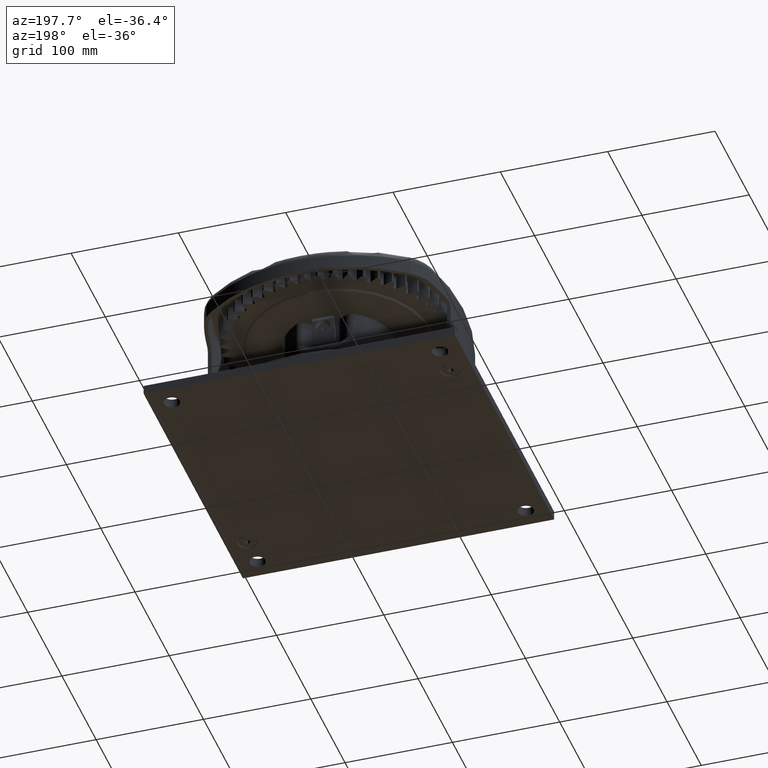
[diagram: clean part render]
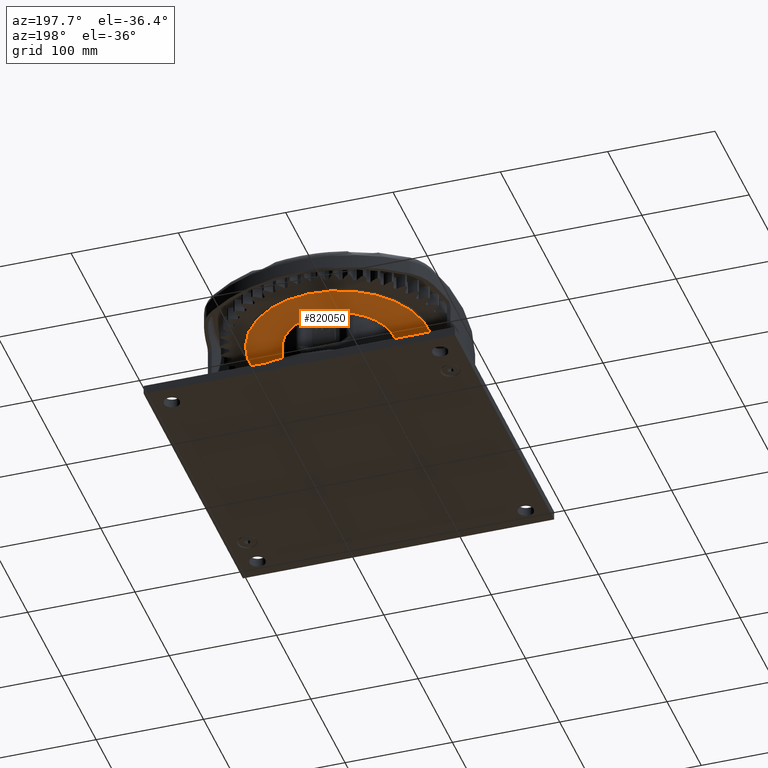
[diagram: same view with one face highlighted and labeled with its STEP entity id]
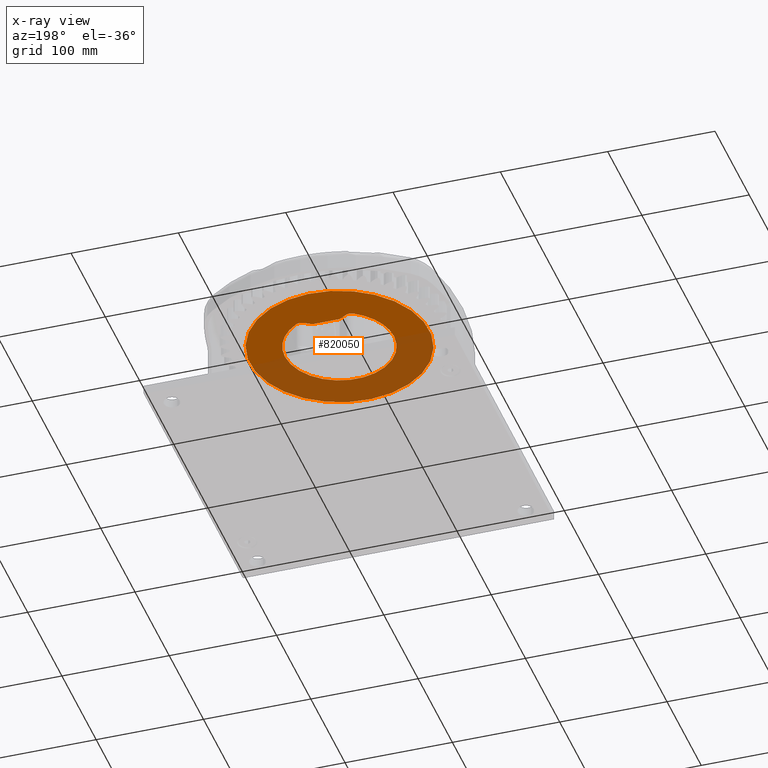
[diagram: x-ray of the same camera — body ghosted, the highlighted face saturated]
A machine part, auxiliary view. The second image highlights one B-rep face of the part: STEP entity #820050.
The next image is the same camera in x-ray: the body ghosted, the highlighted face saturated — about 47% of this face is hidden behind the body in this view.
In plain terms, the highlighted planar face has unit normal (0, 0, 1).
Its self-contained STEP definition (entity closure, byte-faithful):
#815750=CARTESIAN_POINT('',(118.273060966737,215.700818625487,
-23.4999999999999));
#815760=VERTEX_POINT('',#815750);
#815790=CARTESIAN_POINT('',(145.,172.5,-23.4999999999999));
#815800=DIRECTION('',(0.,0.,1.));
#815810=DIRECTION('',(1.,0.,0.));
#815820=AXIS2_PLACEMENT_3D('',#815790,#815800,#815810);
#815830=CIRCLE('',#815820,50.8);
#815840=CARTESIAN_POINT('',(94.2,172.5,-23.4999999999999));
#815850=VERTEX_POINT('',#815840);
#815860=EDGE_CURVE('',#815760,#815850,#815830,.T.);
#816010=CARTESIAN_POINT('',(195.8,172.5,-23.4999999999999));
#816020=VERTEX_POINT('',#816010);
#816050=CARTESIAN_POINT('',(171.726939033263,215.700818625487,
-23.4999999999999));
#816060=VERTEX_POINT('',#816050);
#816070=EDGE_CURVE('',#816020,#816060,#815830,.T.);
#819210=CARTESIAN_POINT('',(146.872866510033,232.095578661807,
-23.4999999999999));
#819220=DIRECTION('',(0.,0.,1.));
#819230=DIRECTION('',(-0.0314107590781283,-0.999506560365732,0.));
#819240=AXIS2_PLACEMENT_3D('',#819210,#819220,#819230);
#819250=PLANE('',#819240);
#819260=CARTESIAN_POINT('',(145.,211.5,-23.4999999999999));
#819270=DIRECTION('',(1.,0.,0.));
#819280=VECTOR('',#819270,1.);
#819290=LINE('',#819260,#819280);
#819300=CARTESIAN_POINT('',(133.303847577293,211.5,-23.4999999999999));
#819310=VERTEX_POINT('',#819300);
#819320=CARTESIAN_POINT('',(156.696152422707,211.5,-23.4999999999999));
#819330=VERTEX_POINT('',#819320);
#819340=EDGE_CURVE('',#819310,#819330,#819290,.T.);
#819350=ORIENTED_EDGE('',*,*,#819340,.F.);
#819360=CARTESIAN_POINT('',(156.696152422707,214.5,-23.4999999999999));
#819370=DIRECTION('',(0.,0.,1.));
#819380=DIRECTION('',(1.,0.,0.));
#819390=AXIS2_PLACEMENT_3D('',#819360,#819370,#819380);
#819400=CIRCLE('',#819390,3.);
#819410=CARTESIAN_POINT('',(158.196152422707,211.901923788647,
-23.4999999999999));
#819420=VERTEX_POINT('',#819410);
#819430=EDGE_CURVE('',#819330,#819420,#819400,.T.);
#819440=ORIENTED_EDGE('',*,*,#819430,.F.);
#819450=CARTESIAN_POINT('',(145.,204.28312163513,-23.4999999999999));
#819460=DIRECTION('',(0.866025403784439,0.5,0.));
#819470=VECTOR('',#819460,1.);
#819480=LINE('',#819450,#819470);
#819490=CARTESIAN_POINT('',(164.954541442327,215.803881508413,
-23.4999999999999));
#819500=VERTEX_POINT('',#819490);
#819510=EDGE_CURVE('',#819420,#819500,#819480,.T.);
#819520=ORIENTED_EDGE('',*,*,#819510,.F.);
#819530=CARTESIAN_POINT('',(168.254541442327,210.088113843436,
-23.4999999999999));
#819540=DIRECTION('',(0.,0.,1.));
#819550=DIRECTION('',(1.,0.,0.));
#819560=AXIS2_PLACEMENT_3D('',#819530,#819540,#819550);
#819570=CIRCLE('',#819560,6.6);
#819580=EDGE_CURVE('',#816060,#819500,#819570,.T.);
#819590=ORIENTED_EDGE('',*,*,#819580,.T.);
#819600=ORIENTED_EDGE('',*,*,#816070,.T.);
#819610=EDGE_CURVE('',#815850,#816020,#815830,.T.);
#819620=ORIENTED_EDGE('',*,*,#819610,.T.);
#819630=ORIENTED_EDGE('',*,*,#815860,.T.);
#819640=CARTESIAN_POINT('',(121.745458557673,210.088113843436,
-23.4999999999999));
#819650=DIRECTION('',(0.,0.,1.));
#819660=DIRECTION('',(1.,0.,0.));
#819670=AXIS2_PLACEMENT_3D('',#819640,#819650,#819660);
#819680=CIRCLE('',#819670,6.6);
#819690=CARTESIAN_POINT('',(125.045458557673,215.803881508413,
-23.4999999999999));
#819700=VERTEX_POINT('',#819690);
#819710=EDGE_CURVE('',#819700,#815760,#819680,.T.);
#819720=ORIENTED_EDGE('',*,*,#819710,.T.);
#819730=CARTESIAN_POINT('',(145.,204.28312163513,-23.4999999999999));
#819740=DIRECTION('',(0.866025403784439,-0.5,0.));
#819750=VECTOR('',#819740,1.);
#819760=LINE('',#819730,#819750);
#819770=CARTESIAN_POINT('',(131.803847577293,211.901923788647,
-23.4999999999999));
#819780=VERTEX_POINT('',#819770);
#819790=EDGE_CURVE('',#819700,#819780,#819760,.T.);
#819800=ORIENTED_EDGE('',*,*,#819790,.F.);
#819810=CARTESIAN_POINT('',(133.303847577293,214.5,-23.4999999999999));
#819820=DIRECTION('',(0.,0.,1.));
#819830=DIRECTION('',(1.,0.,0.));
#819840=AXIS2_PLACEMENT_3D('',#819810,#819820,#819830);
#819850=CIRCLE('',#819840,3.);
#819860=EDGE_CURVE('',#819780,#819310,#819850,.T.);
#819870=ORIENTED_EDGE('',*,*,#819860,.F.);
#819880=EDGE_LOOP('',(#819870,#819800,#819720,#819630,#819620,#819600,
#819590,#819520,#819440,#819350));
#819890=FACE_BOUND('',#819880,.T.);
#819900=CARTESIAN_POINT('',(145.,172.5,-23.4999999999999));
#819910=DIRECTION('',(0.,0.,1.));
#819920=DIRECTION('',(-0.0314107590781283,-0.999506560365732,0.));
#819930=AXIS2_PLACEMENT_3D('',#819900,#819910,#819920);
#819940=CIRCLE('',#819930,83.5);
#819950=CARTESIAN_POINT('',(142.377201616976,89.0412022094615,
-23.4999999999999));
#819960=VERTEX_POINT('',#819950);
#819970=CARTESIAN_POINT('',(147.622798383024,255.958797790539,-23.5));
#819980=VERTEX_POINT('',#819970);
#819990=EDGE_CURVE('',#819960,#819980,#819940,.T.);
#820000=ORIENTED_EDGE('',*,*,#819990,.F.);
#820010=EDGE_CURVE('',#819980,#819960,#819940,.T.);
#820020=ORIENTED_EDGE('',*,*,#820010,.F.);
#820030=EDGE_LOOP('',(#820020,#820000));
#820040=FACE_OUTER_BOUND('',#820030,.T.);
#820050=ADVANCED_FACE('',(#819890,#820040),#819250,.F.);